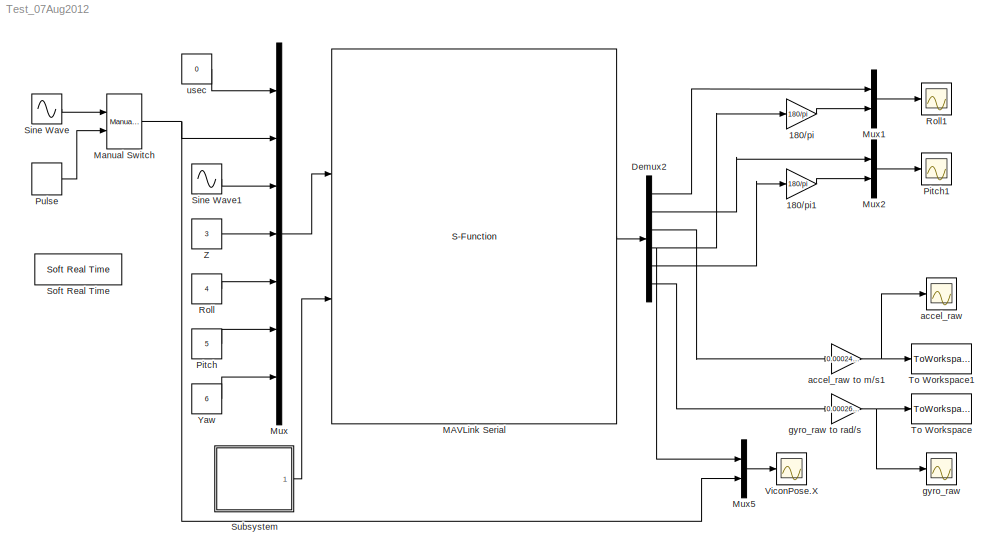
MODEL Test_07Aug2012
KIND model
BLOCK [Gain] 180//pi
  Gain = 180/pi
  OutDataTypeStr = Inherit: Inherit via internal rule
  ParamDataTypeStr = Inherit: Inherit via internal rule
  SID = 120
  SaturateOnIntegerOverflow = off
BLOCK [Gain] 180//pi1
  Gain = 180/pi
  OutDataTypeStr = Inherit: Inherit via internal rule
  ParamDataTypeStr = Inherit: Inherit via internal rule
  SID = 121
  SaturateOnIntegerOverflow = off
BLOCK [Demux] Demux2
  DisplayOption = bar
  Outputs = 6
  Ports = [1, 6]
  SID = 93
BLOCK [S-Function] MAVLink Serial
  EnableBusSupport = off
  FunctionName = MAVLink_Interface
  MaskCallbackString = ||||||||||||||||||
  MaskDisplay = %Label block\nfprintf('MAVLink Serial\\n%s\\n%dbps', COM_Port,  Baud_Rate)\n\n%Label input ports\n\nin = 1;\nif (SET_MODE == 1)\n    port_label('input', in, 'SET MODE');\n    in = in + 1;\nend\nif (DATA_STREAM == 1)\n    port_label('input', in, 'REQUEST DATA STREAM');\n    in = in + 1;\nend\nif (ATTITUDE_COMMAND == 1)\n    port_label('input', in, 'ATTITUDE COMMAND');\n    in = in + 1;\nend\nif (AT...<+1383ch>
  MaskEnableString = on,on,on,on,on,on,on,on,on,on,on,on,on,on,on,on,on,on,on
  MaskIconFrame = on
  MaskIconOpaque = on
  MaskIconRotate = none
  MaskIconUnits = autoscale
  MaskInitialization = MSG_ID_NUM_INPUT = [uint8(11) uint8(66) uint8(59) uint8(30) uint8(32) uint8(73) uint8(104) uint8(103) uint8(50)];\nMSG_ID_NAME_INPUT = [SET_MODE DATA_STREAM ATTITUDE_COMMAND ATTITUDE_IN GPS_RAW_IN VFR_HUD_IN VICON_XYZ_RPY VICON_VEL POSITION_DESIRED];\n\nMSG_ID_NUM_OUTPUT = [uint8(0) uint8(30) uint8(27) uint8(73) uint8(74) uint8(34) uint8(37) uint8(104)];\nMSG_ID_NAME_OUTPUT = [HEART_BEAT ATTITUDE_...<+248ch>
  MaskPortRotate = default
  MaskPromptString = COM Port|Baud Rate|HEART BEAT|ATTITUDE|RAW IMU|GLOBAL POSITION |VFR HUD|RC CHANNELS SCALED|SERVO OUTPUT RAW|VICON Output|SET MODE|REQUEST DATA STREAM|ATTITUDE COMMAND|ATTITUDE (HIL)|GPS RAW (HIL)|AIRSPEED (HIL)|VICON POSITION|VICON SPEED|Position Desired
  MaskStyleString = edit,edit,checkbox,checkbox,checkbox,checkbox,checkbox,checkbox,checkbox,checkbox,checkbox,checkbox,checkbox,checkbox,checkbox,checkbox,checkbox,checkbox,checkbox
  MaskTabNameString = Setting,Setting,Output Message,Output Message,Output Message,Output Message,Output Message,Output Message,Output Message,Output Message,Input Message,Input Message,Input Message,Input Message,Input Message,Input Message,Input Message,Input Message,Input Message
  MaskToolTipString = on,on,on,on,on,on,on,on,on,on,on,on,on,on,on,on,on,on,on
  MaskTunableValueString = on,on,on,on,on,on,on,on,on,on,on,on,on,on,on,on,on,on,on
  MaskValueString = 'COM6'|57600|off|on|off|off|off|off|off|off|off|off|off|off|off|off|on|off|on
  MaskVariables = COM_Port=@1;Baud_Rate=@2;HEART_BEAT=@3;ATTITUDE_OUT=@4;RAW_IMU=@5;POSITION_OUT=@6;VFR_HUD=@7;RC_SCALED=@8;SERVO_OUT_RAW=@9;VICON_XYZ_RPY_Output=@10;SET_MODE=@11;DATA_STREAM=@12;ATTITUDE_COMMAND=@13;ATTITUDE_IN=@14;GPS_RAW_IN=@15;VFR_HUD_IN=@16;VICON_XYZ_RPY=@17;VICON_VEL=@18;POSITION_DESIRED=@19;
  MaskVisibilityString = on,on,on,on,on,on,on,on,on,on,on,on,on,on,on,on,on,on,on
  Parameters = COM_Port,Baud_Rate,MSG_INPUT,MSG_OUTPUT
  Ports = [2, 1]
  SID = 33
BLOCK [Reference] Manual Switch  REF=simulink/Signal\nRouting/Manual Switch
  FunctionWithSeparateData = off
  GeneratePreprocessorConditionals = off
  Ports = [2, 1]
  RTWMemSecDataConstants = Inherit from model
  RTWMemSecDataInternal = Inherit from model
  RTWMemSecDataParameters = Inherit from model
  RTWMemSecFuncExecute = Inherit from model
  RTWMemSecFuncInitTerm = Inherit from model
  SID = 106
  ShowPortLabels = FromPortIcon
  SourceBlock = simulink/Signal\nRouting/Manual Switch
  SourceType = Manual Switch
  SystemSampleTime = -1
  action = 0
  sw = 1
  varsize = off
BLOCK [Mux] Mux
  DisplayOption = bar
  Inputs = 7
  Ports = [7, 1]
  SID = 35
BLOCK [Mux] Mux1
  DisplayOption = bar
  Inputs = 2
  Ports = [2, 1]
  SID = 115
BLOCK [Mux] Mux2
  DisplayOption = bar
  Inputs = 2
  Ports = [2, 1]
  SID = 116
BLOCK [Mux] Mux5
  DisplayOption = bar
  Inputs = 2
  Ports = [2, 1]
  SID = 96
BLOCK [Constant] Pitch
  SID = 64
  Value = 5
BLOCK [Scope] Pitch1
  DataFormat = StructureWithTime
  Floating = off
  LimitDataPoints = off
  NumInputPorts = 1
  Ports = [1]
  SID = 119
  SampleInput = on
  SampleTime = 0
  SaveName = ScopeData4
  TickLabels = on
  TimeRange = 100
  YMax = 30
  YMin = -35
BLOCK [DiscretePulseGenerator] Pulse
  Period = 6
  Ports = [0, 1]
  PulseType = Time based
  PulseWidth = 50
  SID = 80
  SampleTime = -1
BLOCK [Constant] Roll
  SID = 63
  Value = 4
BLOCK [Scope] Roll1
  DataFormat = StructureWithTime
  Floating = off
  LimitDataPoints = off
  NumInputPorts = 1
  Ports = [1]
  SID = 118
  SampleInput = on
  SampleTime = 0
  SaveName = ScopeData3
  TickLabels = on
  TimeRange = 100
  YMax = 35
  YMin = -35
  ZoomMode = xonly
BLOCK [Sin] Sine Wave
  Frequency = 0.5
  Ports = [0, 1]
  SID = 81
  SampleTime = 0.02
BLOCK [Sin] Sine Wave1
  Ports = [0, 1]
  SID = 76
  SampleTime = 0.02
BLOCK [Reference] Soft Real Time  REF=utility/Soft Real Time  (lib defined in slx_8818c3a16fdf)
  Ports = []
  SID = 49
  SourceBlock = utility/Soft Real Time
  x = 0.8
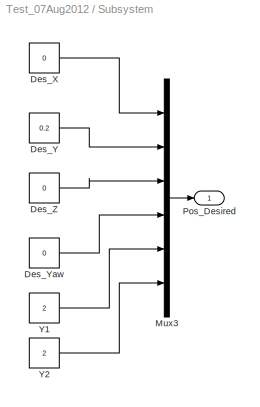
BLOCK [SubSystem] Subsystem
  FunctionWithSeparateData = off
  MaskHideContents = off
  MinAlgLoopOccurrences = off
  Opaque = off
  Ports = [0, 1]
  PropExecContextOutsideSubsystem = off
  RTWSystemCode = Auto
  RequestExecContextInheritance = off
  SID = 97
BLOCK [Constant] Subsystem/Des_X
  SID = 99
  SampleTime = 0.02
  Value = 0
BLOCK [Constant] Subsystem/Des_Y
  SID = 100
  SampleTime = 0.02
  Value = 0.2
BLOCK [Constant] Subsystem/Des_Yaw
  SID = 101
  SampleTime = 0.02
  Value = 0
BLOCK [Constant] Subsystem/Des_Z
  SID = 102
  SampleTime = 0.02
  Value = 0
BLOCK [Mux] Subsystem/Mux3
  DisplayOption = bar
  Inputs = 6
  Ports = [6, 1]
  SID = 103
BLOCK [Outport] Subsystem/Pos_Desired
  IconDisplay = Port number
  SID = 98
BLOCK [Constant] Subsystem/Y1
  SID = 104
  SampleTime = 0.02
  Value = 2
BLOCK [Constant] Subsystem/Y2
  SID = 105
  SampleTime = 0.02
  Value = 2
BLOCK [ToWorkspace] To Workspace
  MaxDataPoints = inf
  Ports = [1]
  SID = 107
  SampleTime = -1
  SaveFormat = Structure With Time
  VariableName = gyro_raw
BLOCK [ToWorkspace] To Workspace1
  MaxDataPoints = inf
  Ports = [1]
  SID = 110
  SampleTime = -1
  SaveFormat = Structure With Time
  VariableName = accel_raw
BLOCK [Scope] ViconPose.X
  DataFormat = StructureWithTime
  Floating = off
  LimitDataPoints = off
  NumInputPorts = 1
  Ports = [1]
  SID = 95
  SampleInput = on
  SampleTime = 0
  TickLabels = on
  TimeRange = 30
  YMax = 1
  YMin = -1
  ZoomMode = xonly
BLOCK [Constant] Yaw
  SID = 65
  Value = 6
BLOCK [Constant] Z
  SID = 39
  Value = 3
BLOCK [Scope] accel_raw
  DataFormat = StructureWithTime
  Floating = off
  LimitDataPoints = off
  NumInputPorts = 1
  Ports = [1]
  SID = 3
  SampleInput = on
  SampleTime = 0
  SaveName = ScopeData1
  TickLabels = on
  TimeRange = 100
  YMax = 0.0125
  YMin = -0.0275
BLOCK [Gain] accel_raw to m//s1
  Gain = 0.000244140625*9.81
  OutDataTypeStr = Inherit: Inherit via internal rule
  ParamDataTypeStr = Inherit: Inherit via internal rule
  SID = 109
  SaturateOnIntegerOverflow = off
BLOCK [Scope] gyro_raw
  DataFormat = StructureWithTime
  Floating = off
  LimitDataPoints = off
  NumInputPorts = 1
  Ports = [1]
  SID = 117
  SampleInput = on
  SampleTime = 0
  SaveName = ScopeData2
  TickLabels = on
  TimeRange = 100
  YMax = 0.0125
  YMin = -0.0275
BLOCK [Gain] gyro_raw to rad//s
  Gain = 0.00026631611
  OutDataTypeStr = Inherit: Inherit via internal rule
  ParamDataTypeStr = Inherit: Inherit via internal rule
  SID = 108
  SaturateOnIntegerOverflow = off
BLOCK [Constant] usec
  SID = 36
  Value = 0
LINE 180//pi1:1 -> Mux2:2
LINE 180//pi:1 -> Mux1:2
LINE Demux2:1 -> Mux1:1
LINE Demux2:2 -> Mux2:1
LINE Demux2:3 -> accel_raw to m//s1:1
NET Demux2:4 -> 180//pi:1, Mux5:1
LINE Demux2:5 -> 180//pi1:1
LINE Demux2:6 -> gyro_raw to rad//s:1
LINE MAVLink Serial:1 -> Demux2:1
NET Manual Switch:1 -> Mux5:2, Mux:2
LINE Mux1:1 -> Roll1:1
LINE Mux2:1 -> Pitch1:1
LINE Mux5:1 -> ViconPose.X:1
LINE Mux:1 -> MAVLink Serial:1
LINE Pitch:1 -> Mux:6
LINE Pulse:1 -> Manual Switch:2
LINE Roll:1 -> Mux:5
LINE Sine Wave1:1 -> Mux:3
LINE Sine Wave:1 -> Manual Switch:1
LINE Subsystem/Des_X:1 -> Subsystem/Mux3:1
LINE Subsystem/Des_Y:1 -> Subsystem/Mux3:2
LINE Subsystem/Des_Yaw:1 -> Subsystem/Mux3:4
LINE Subsystem/Des_Z:1 -> Subsystem/Mux3:3
LINE Subsystem/Mux3:1 -> Subsystem/Pos_Desired:1
LINE Subsystem/Y1:1 -> Subsystem/Mux3:5
LINE Subsystem/Y2:1 -> Subsystem/Mux3:6
LINE Subsystem:1 -> MAVLink Serial:2
LINE Yaw:1 -> Mux:7
LINE Z:1 -> Mux:4
NET accel_raw to m//s1:1 -> To Workspace1:1, accel_raw:1
NET gyro_raw to rad//s:1 -> To Workspace:1, gyro_raw:1
LINE usec:1 -> Mux:1
note: NET lines group one-source signal fan-out (src -> all destinations, sorted); 1:1 wires keep LINE
